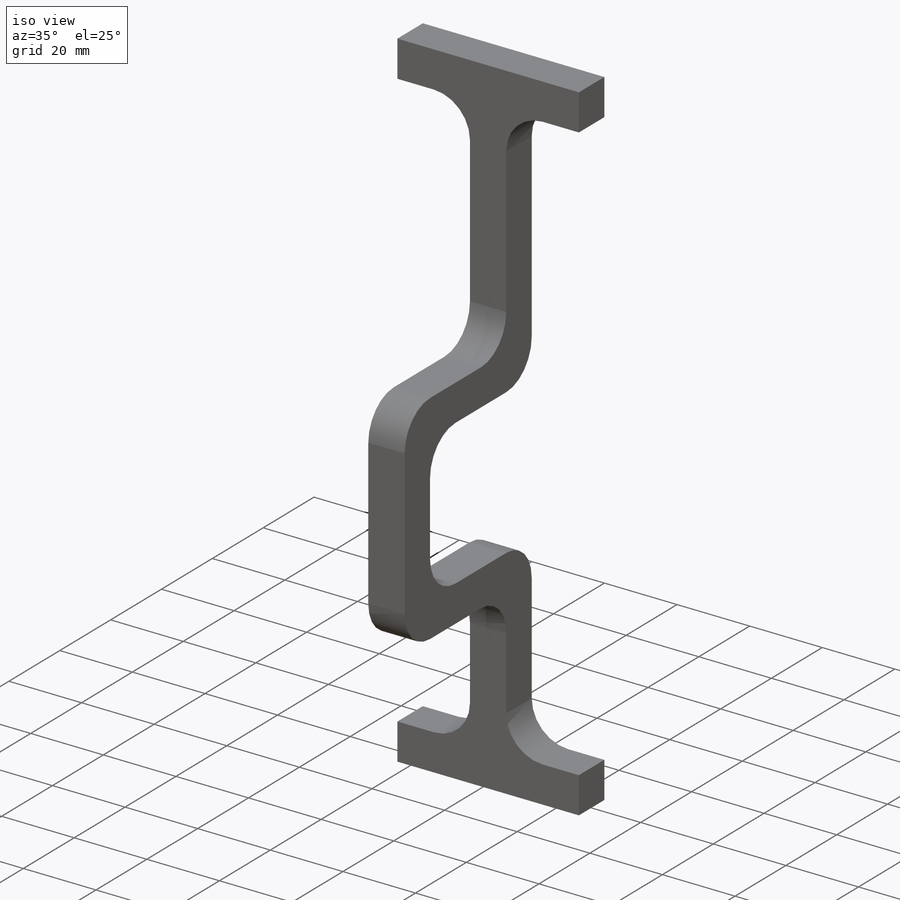
[diagram: iso view]
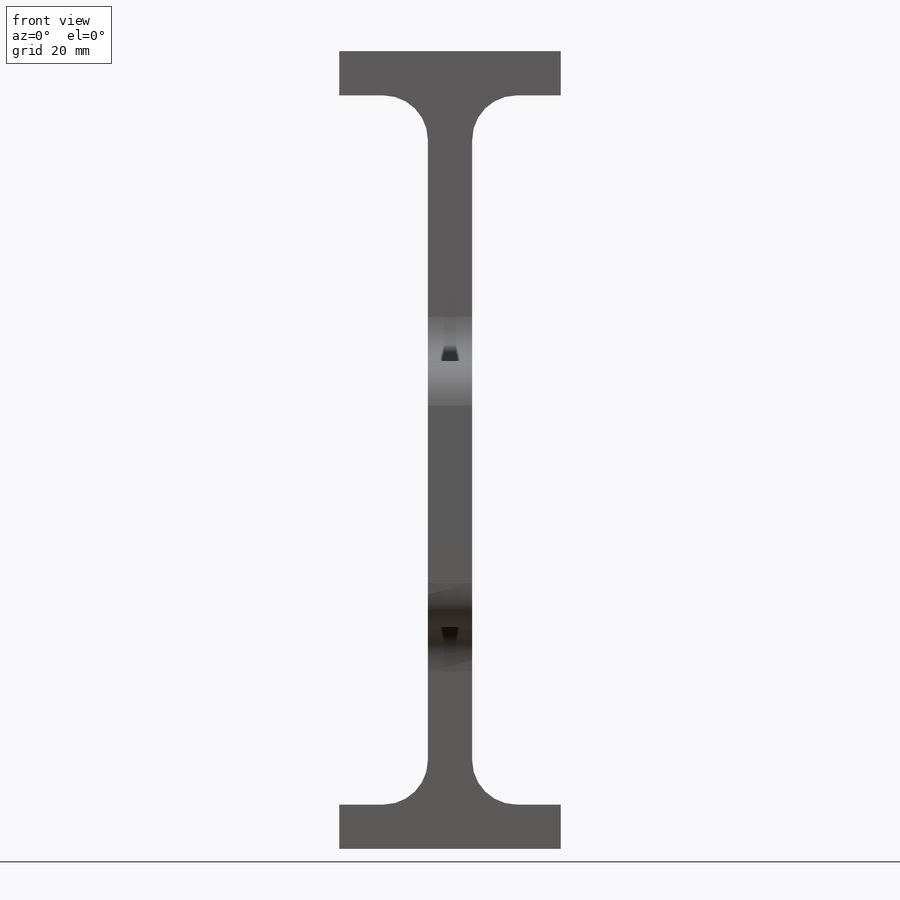
[diagram: front view]
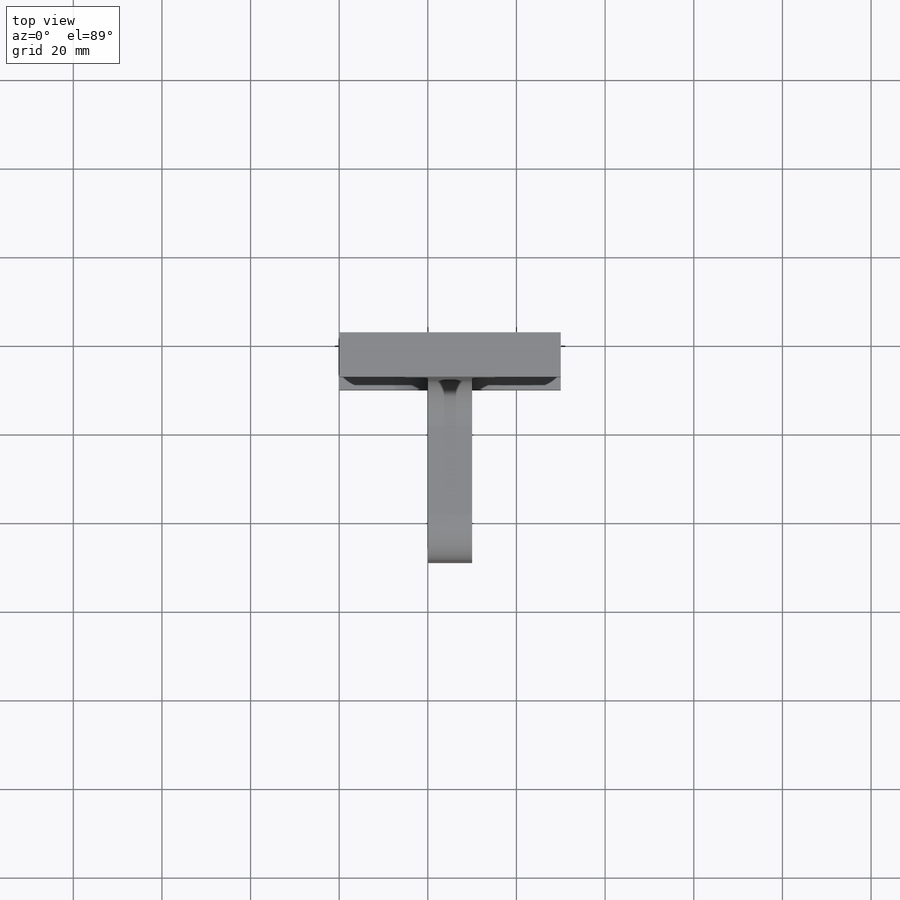
[diagram: top view]
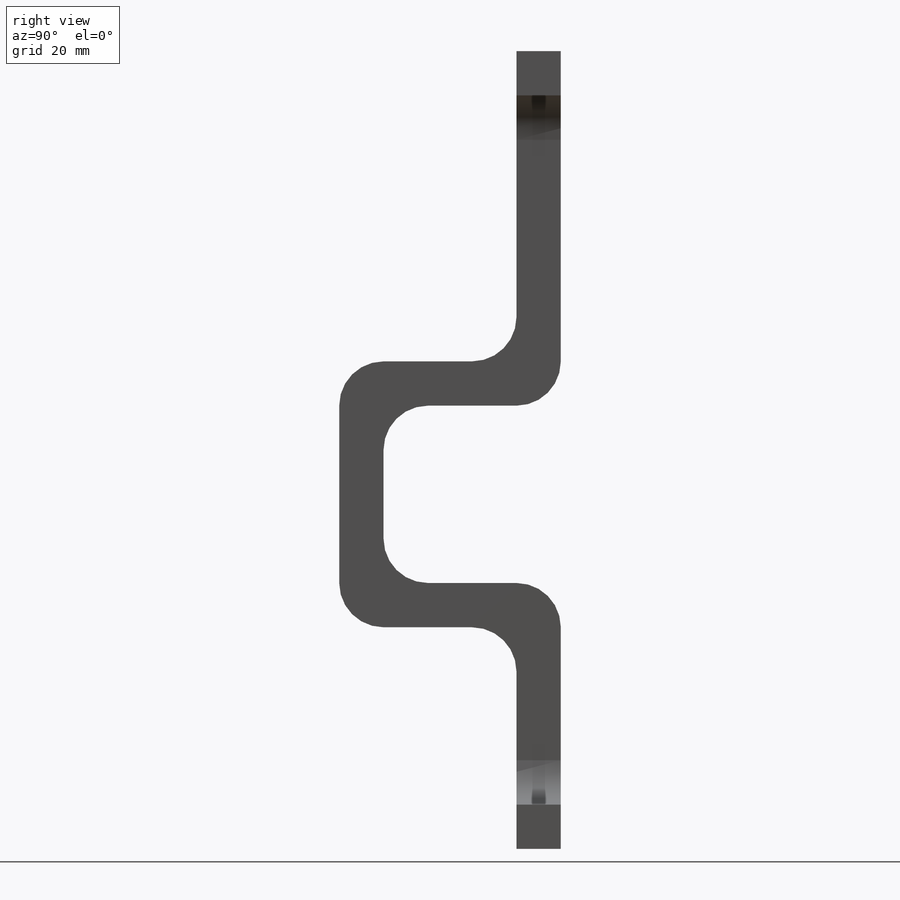
[diagram: right view]
SOLIDWORKS PART (.sldprt)
format: sldprt  version: not decoded by parser v0  size: 208,896 bytes
history: native  units: mm
features: sketch x2, extrude x2, plane x2, material x1, mirror x1, fillet x1 (+13 scaffold rows collapsed)
feature tree (22):
  scaffold x13  (default folders/planes/origin — collapsed)
  material  "Material <not specified>"
  sketch  "Sketch1"  dims[D1=10.0mm D2=50.0mm D3=10.0mm D4=40.0mm D5=10.0mm D6=10.0mm D7=70.0mm D8=50.0mm]
  extrude  "Boss-Extrude1"  Depth=10mm
  sketch  "Sketch2"  dims[D1=~10.615307mm]
  extrude  "Boss-Extrude2"  Depth=20mm
  plane  "Plane1"
  mirror  "Mirror1"
  fillet  "Fillet1"  Radius=10mm
  plane  "Plane2"  Offset=15mm
decode coverage: 5 of 6 modeling features carry decoded parameters
note: ~ marks probable driven/reference dimensions
note: suppression state not decoded; provenance and decode notes live in map.json
